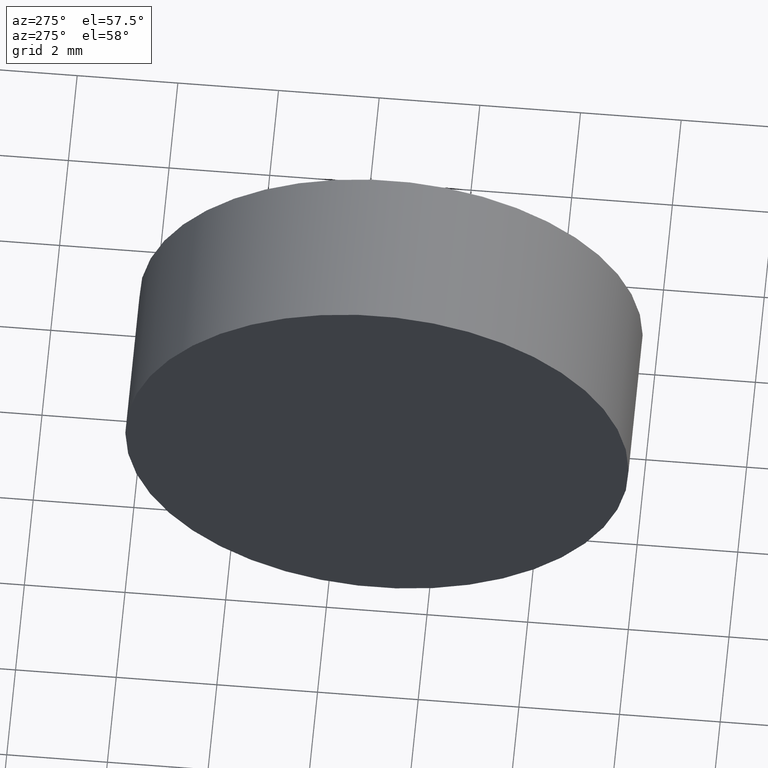
[diagram: clean part render]
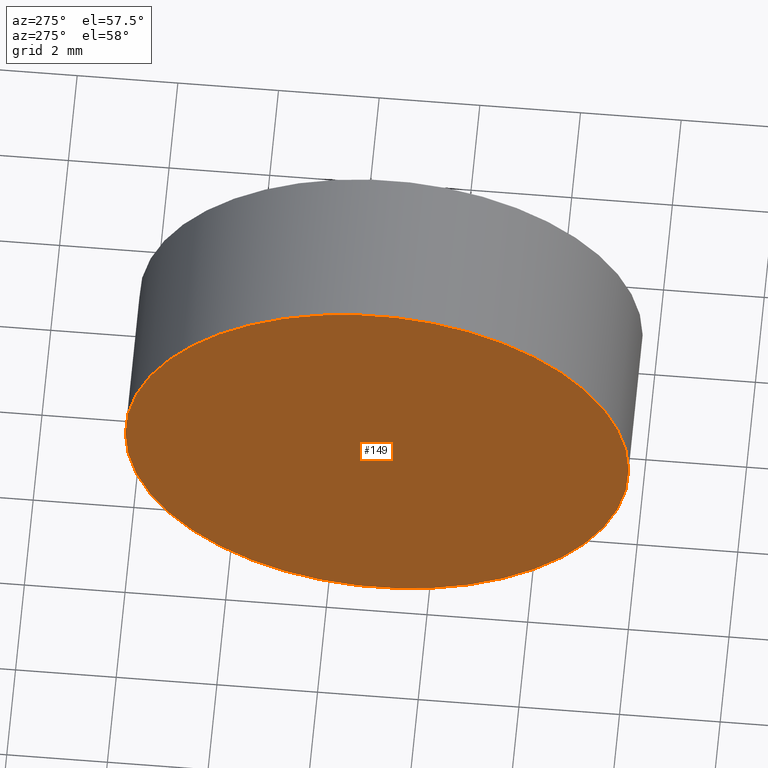
[diagram: same view with one face highlighted and labeled with its STEP entity id]
A machine part, auxiliary view. The second image highlights one B-rep face of the part: STEP entity #149.
In plain terms, the highlighted planar face has unit normal (1, -0, 0).
Its self-contained STEP definition (entity closure, byte-faithful):
#5 = CIRCLE ( 'NONE', #43, 5.000000000000000900 ) ;
#6 = FACE_OUTER_BOUND ( 'NONE', #110, .T. ) ;
#16 = VERTEX_POINT ( 'NONE', #92 ) ;
#25 = DIRECTION ( 'NONE',  ( 3.159171411554934600E-016, 1.000000000000000000, 0.0000000000000000000 ) ) ;
#28 = DIRECTION ( 'NONE',  ( -1.000000000000000000, 3.159171411554934600E-016, -0.0000000000000000000 ) ) ;
#32 = CIRCLE ( 'NONE', #117, 5.000000000000000900 ) ;
#33 = ORIENTED_EDGE ( 'NONE', *, *, #95, .T. ) ;
#43 = AXIS2_PLACEMENT_3D ( 'NONE', #116, #28, #156 ) ;
#51 = CARTESIAN_POINT ( 'NONE',  ( 22.42423205362066000, 13.03112609140304200, 0.0000000000000000000 ) ) ;
#54 = CARTESIAN_POINT ( 'NONE',  ( 22.42423205362066000, 8.031126091403040200, 0.0000000000000000000 ) ) ;
#66 = ORIENTED_EDGE ( 'NONE', *, *, #103, .T. ) ;
#67 = PLANE ( 'NONE',  #138 ) ;
#92 = CARTESIAN_POINT ( 'NONE',  ( 22.42423205362066000, 18.03112609140304200, 6.123233995736768300E-016 ) ) ;
#95 = EDGE_CURVE ( 'NONE', #129, #16, #5, .T. ) ;
#103 = EDGE_CURVE ( 'NONE', #16, #129, #32, .T. ) ;
#104 = DIRECTION ( 'NONE',  ( 0.0000000000000000000, -1.000000000000000000, 0.0000000000000000000 ) ) ;
#110 = EDGE_LOOP ( 'NONE', ( #33, #66 ) ) ;
#115 = DIRECTION ( 'NONE',  ( -1.000000000000000000, 3.159171411554934600E-016, -0.0000000000000000000 ) ) ;
#116 = CARTESIAN_POINT ( 'NONE',  ( 22.42423205362066000, 13.03112609140304200, 0.0000000000000000000 ) ) ;
#117 = AXIS2_PLACEMENT_3D ( 'NONE', #166, #115, #104 ) ;
#129 = VERTEX_POINT ( 'NONE', #54 ) ;
#138 = AXIS2_PLACEMENT_3D ( 'NONE', #51, #157, #25 ) ;
#149 = ADVANCED_FACE ( 'NONE', ( #6 ), #67, .F. ) ;
#156 = DIRECTION ( 'NONE',  ( 0.0000000000000000000, -1.000000000000000000, 0.0000000000000000000 ) ) ;
#157 = DIRECTION ( 'NONE',  ( 1.000000000000000000, -3.159171411554934600E-016, 0.0000000000000000000 ) ) ;
#166 = CARTESIAN_POINT ( 'NONE',  ( 22.42423205362066000, 13.03112609140304200, 0.0000000000000000000 ) ) ;